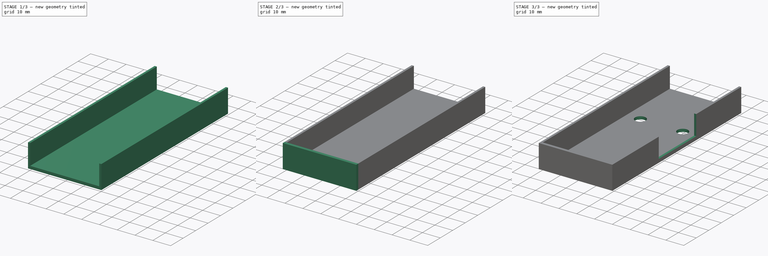
[diagram: build sequence overview — one tinted view per stage of 3, left to right]
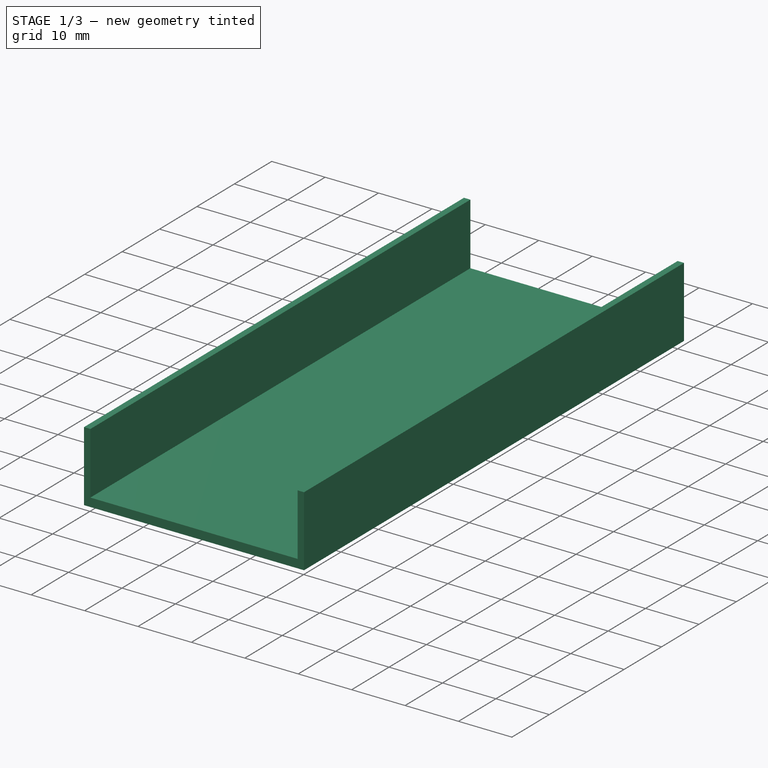
[diagram: stage 1 of 3 — iso view after this stage's code; geometry added in this stage tinted green]
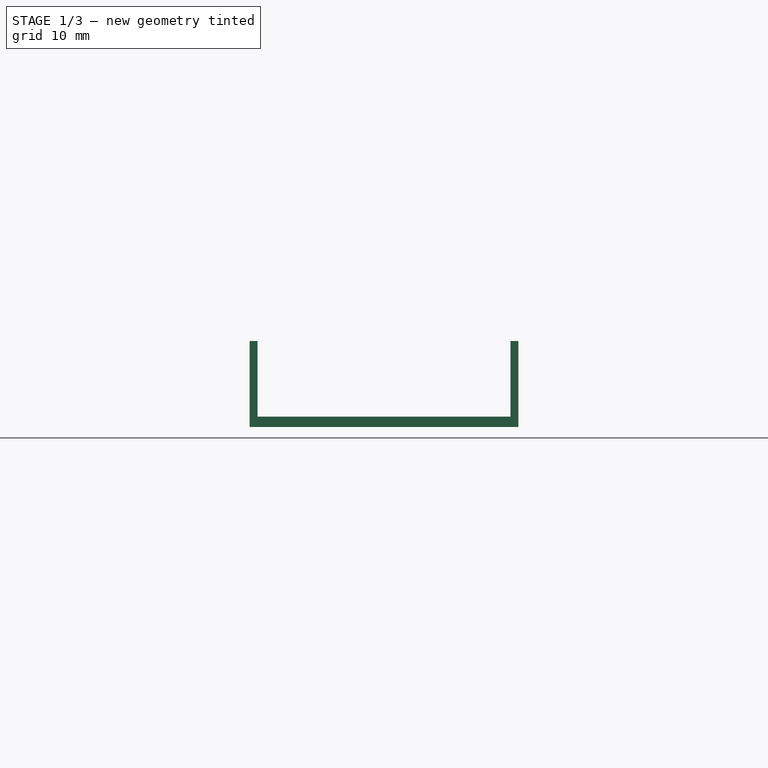
[diagram: stage 1 of 3 — front view after this stage's code; geometry added in this stage tinted green]
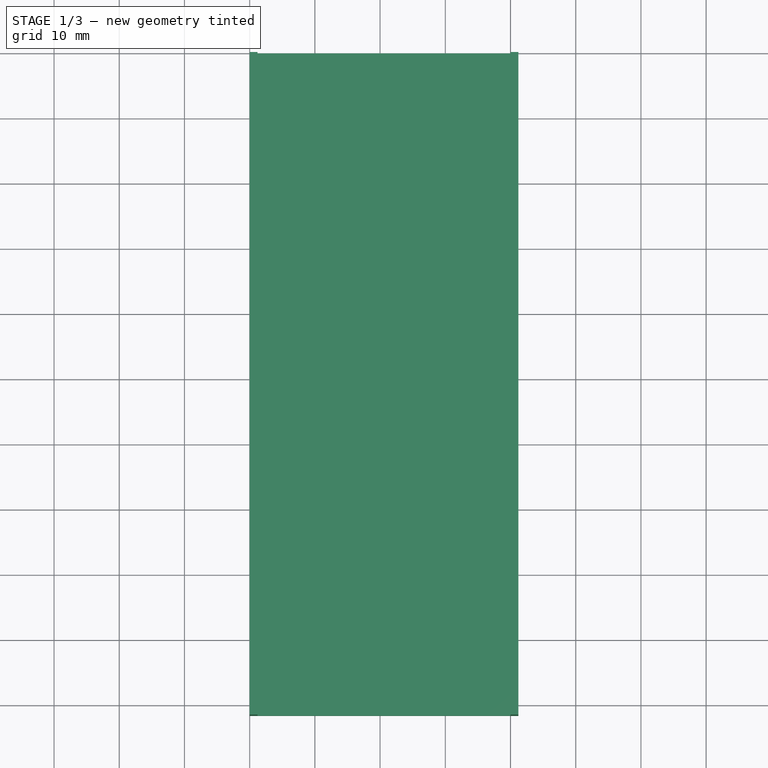
[diagram: stage 1 of 3 — top view after this stage's code; geometry added in this stage tinted green]
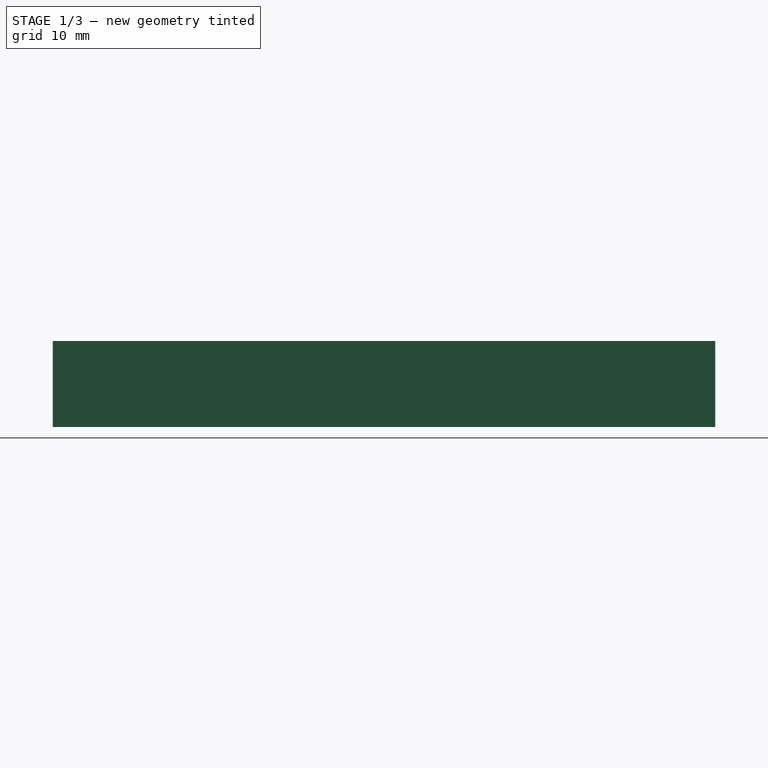
[diagram: stage 1 of 3 — right view after this stage's code; geometry added in this stage tinted green]
FCSTD DOCUMENT  (FreeCAD 0.16R6712 (Git))
Label: LCM cabshell10
License: All rights reserved
LicenseURL: http://en.wikipedia.org/wiki/All_rights_reserved
objects: Sketcher::SketchObject×5, PartDesign::Pad×3, PartDesign::Pocket×2
note: 15 computed .brp shape members not serialized (recipe doc carries the construction recipe); baked Part::Feature solids carry a one-line shape summary decoded from their .brp

FEATURE [Sketcher::SketchObject] Sketch
  sketch-geometry (4):
    g0: LineSegment StartX=0 StartY=0 StartZ=0 EndX=41.2 EndY=0 EndZ=0
    g1: LineSegment StartX=41.2 StartY=0 StartZ=0 EndX=41.2 EndY=-101.6 EndZ=0
    g2: LineSegment StartX=41.2 StartY=-101.6 StartZ=0 EndX=0 EndY=-101.6 EndZ=0
    g3: LineSegment StartX=0 StartY=-101.6 StartZ=0 EndX=0 EndY=0 EndZ=0
  constraints (11):
    c: Coincident(g0,g1)
    c: Coincident(g1,g2)
    c: Coincident(g2,g3)
    c: Coincident(g3,g0)
    c: Horizontal(g0)
    c: Horizontal(g2)
    c: Vertical(g1)
    c: Vertical(g3)
    c: Coincident(g0,g-1)
    c: DistanceY(g3,g3) = 101.6
    c: DistanceX(g2,g2) = 41.2
FEATURE [PartDesign::Pad] Pad
  Length = 1.6
  Length2 = 100
  Sketch = -> Sketch
  Type = 0
FEATURE [Sketcher::SketchObject] Sketch001
  ExternalGeometry = -> [Pad]
  Placement = pos=(0,0,1.6) rot=(0,0,1;0rad)
  Support = -> Pad [Face6]
  sketch-geometry (8):
    g0: LineSegment StartX=0 StartY=0 StartZ=0 EndX=1.2 EndY=0 EndZ=0
    g1: LineSegment StartX=1.2 StartY=0 StartZ=0 EndX=1.2 EndY=-101.6 EndZ=0
    g2: LineSegment StartX=1.2 StartY=-101.6 StartZ=0 EndX=0 EndY=-101.6 EndZ=0
    g3: LineSegment StartX=0 StartY=-101.6 StartZ=0 EndX=0 EndY=0 EndZ=0
    g4: LineSegment StartX=40 StartY=0 StartZ=0 EndX=41.2 EndY=0 EndZ=0
    g5: LineSegment StartX=41.2 StartY=0 StartZ=0 EndX=41.2 EndY=-101.6 EndZ=0
    g6: LineSegment StartX=41.2 StartY=-101.6 StartZ=0 EndX=40 EndY=-101.6 EndZ=0
    g7: LineSegment StartX=40 StartY=-101.6 StartZ=0 EndX=40 EndY=0 EndZ=0
  constraints (22):
    c: Coincident(g0,g1)
    c: Coincident(g1,g2)
    c: Coincident(g2,g3)
    c: Coincident(g3,g0)
    c: Horizontal(g0)
    c: Horizontal(g2)
    c: Vertical(g1)
    c: Vertical(g3)
    c: Coincident(g4,g5)
    c: Coincident(g5,g6)
    c: Coincident(g6,g7)
    c: Coincident(g7,g4)
    c: Horizontal(g4)
    c: Horizontal(g6)
    c: Vertical(g5)
    c: Vertical(g7)
    c: Coincident(g0,g-1)
    c: DistanceY(g1,g1) = 101.6
    c: DistanceX(g2,g2) = 1.2
    c: Coincident(g4,g-3)
    c: DistanceY(g7,g7) = 101.6
    c: DistanceX(g6,g6) = 1.2
FEATURE [PartDesign::Pad] Pad001
  Length = 11.6
  Length2 = 100
  Sketch = -> Sketch001
  Type = 0
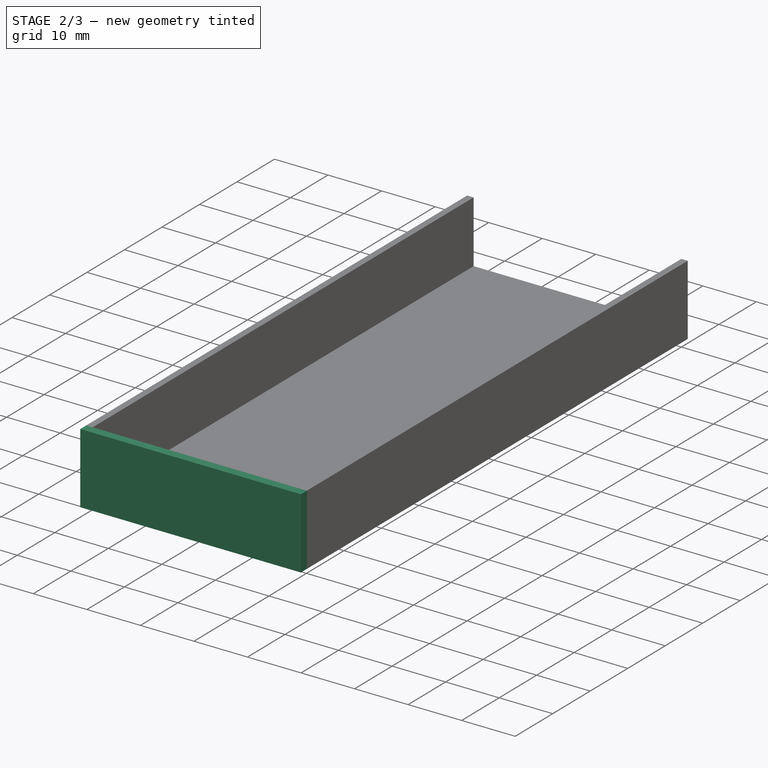
[diagram: stage 2 of 3 — iso view after this stage's code; geometry added in this stage tinted green]
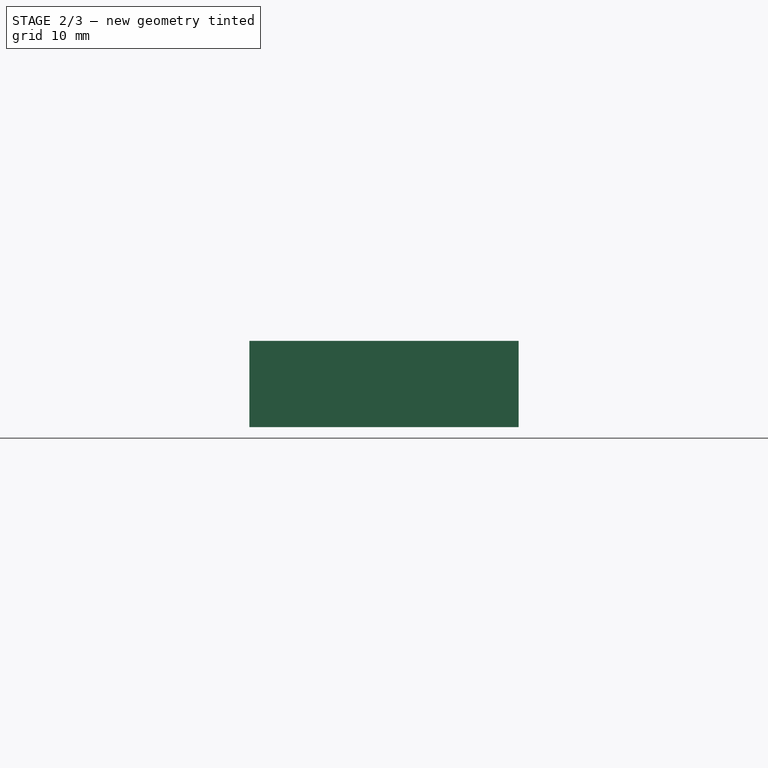
[diagram: stage 2 of 3 — front view after this stage's code; geometry added in this stage tinted green]
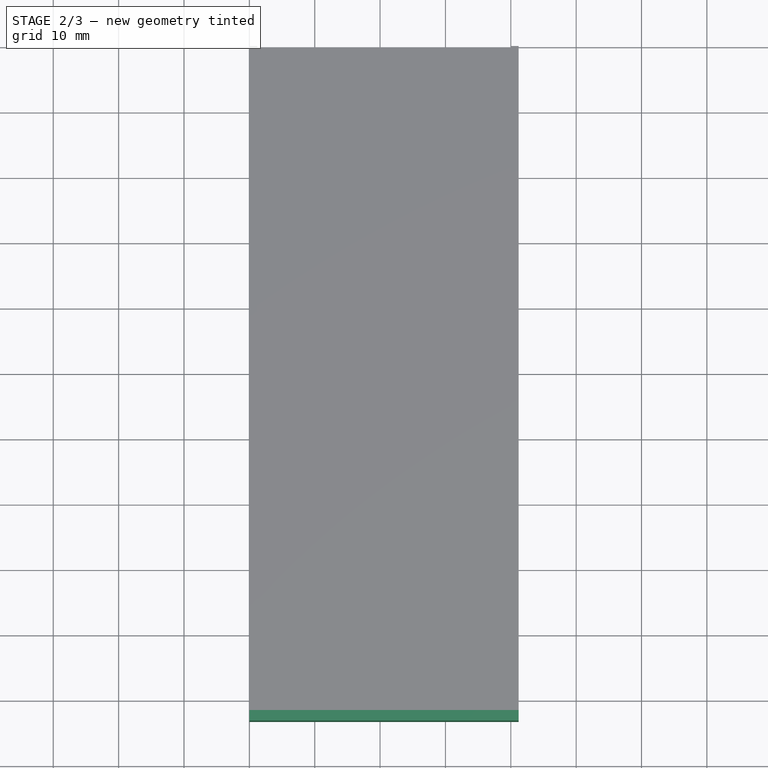
[diagram: stage 2 of 3 — top view after this stage's code; geometry added in this stage tinted green]
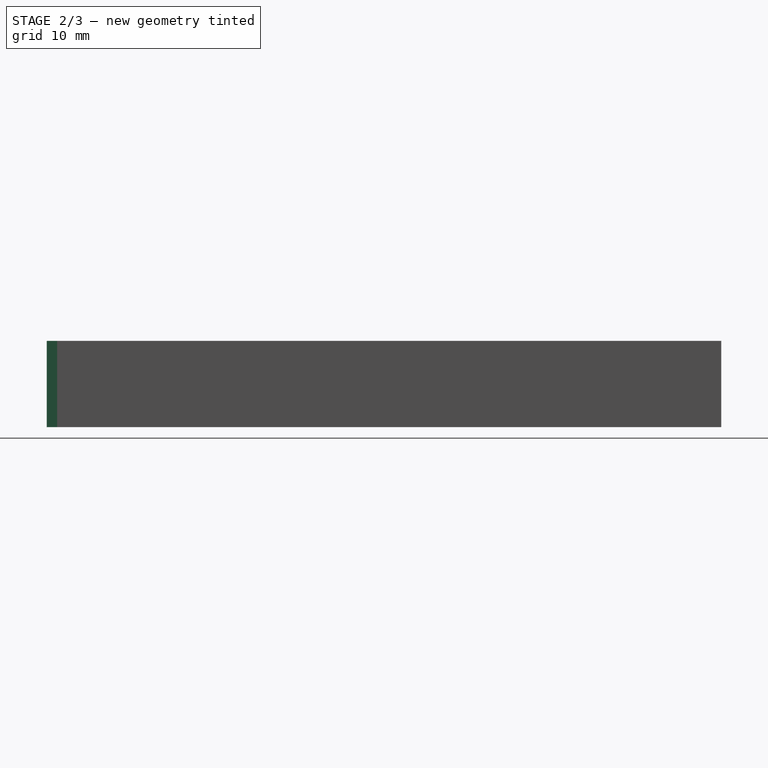
[diagram: stage 2 of 3 — right view after this stage's code; geometry added in this stage tinted green]
FEATURE [Sketcher::SketchObject] Sketch002
  Placement = pos=(0,-101.6,0) rot=(1,0,0;1.5708rad)
  Support = -> Pad001 [Face4]
  sketch-geometry (4):
    g0: LineSegment StartX=0 StartY=13.2 StartZ=0 EndX=41.2 EndY=13.2 EndZ=0
    g1: LineSegment StartX=41.2 StartY=13.2 StartZ=0 EndX=41.2 EndY=0 EndZ=0
    g2: LineSegment StartX=41.2 StartY=0 StartZ=0 EndX=0 EndY=0 EndZ=0
    g3: LineSegment StartX=0 StartY=0 StartZ=0 EndX=0 EndY=13.2 EndZ=0
  constraints (11):
    c: Coincident(g0,g1)
    c: Coincident(g1,g2)
    c: Coincident(g2,g3)
    c: Coincident(g3,g0)
    c: Horizontal(g0)
    c: Horizontal(g2)
    c: Vertical(g1)
    c: Vertical(g3)
    c: DistanceX(g2,g2) = 41.2
    c: DistanceY(g3,g3) = 13.2
    c: Coincident(g-1,g2)
FEATURE [PartDesign::Pad] Pad002
  Length = 1.6
  Length2 = 100
  Sketch = -> Sketch002
  Type = 0
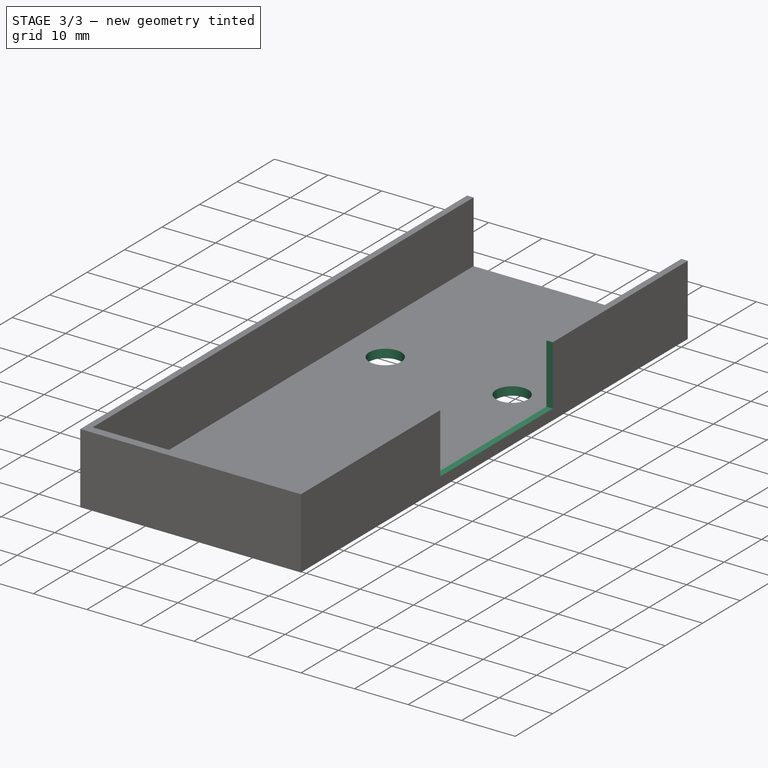
[diagram: stage 3 of 3 — iso view after this stage's code; geometry added in this stage tinted green]
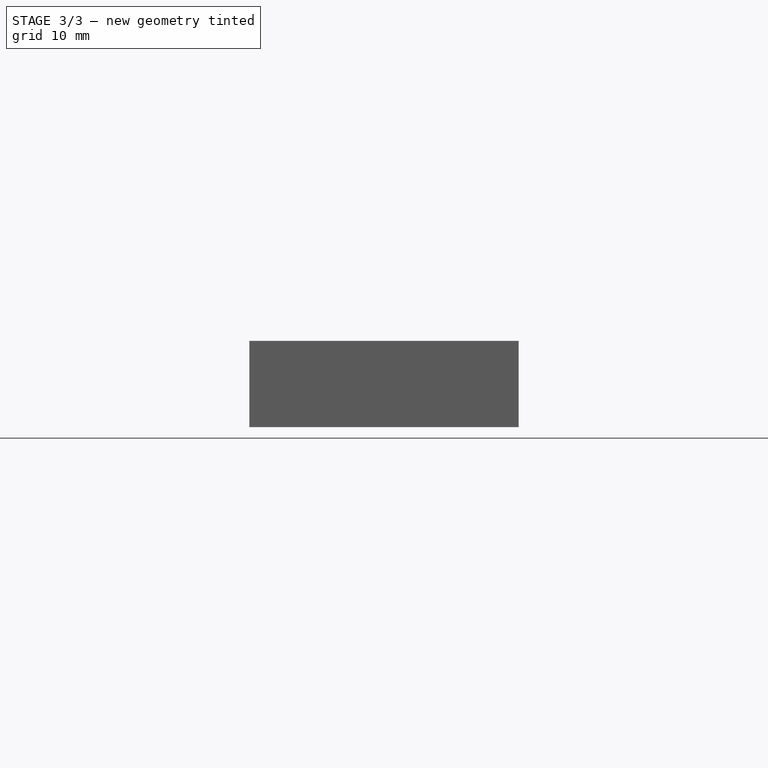
[diagram: stage 3 of 3 — front view after this stage's code; geometry added in this stage tinted green]
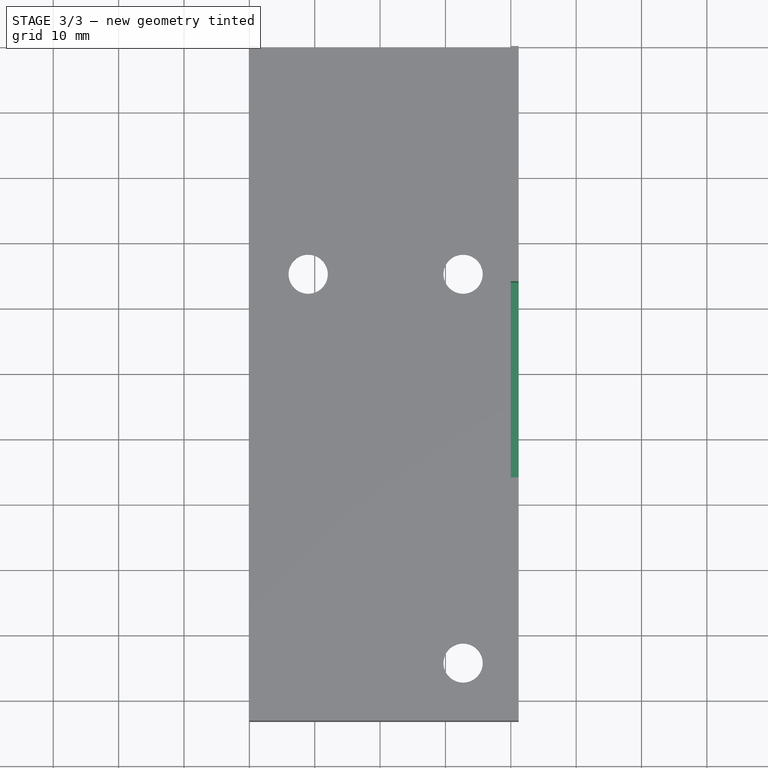
[diagram: stage 3 of 3 — top view after this stage's code; geometry added in this stage tinted green]
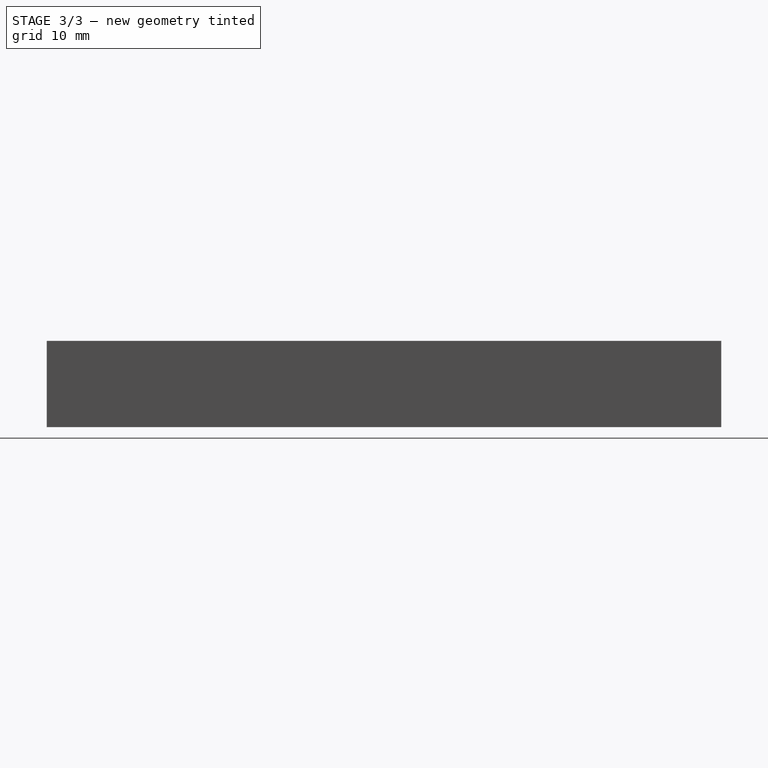
[diagram: stage 3 of 3 — right view after this stage's code; geometry added in this stage tinted green]
FEATURE [Sketcher::SketchObject] Sketch003
  Placement = pos=(41.2,0,0) rot=(0.57735,0.57735,0.57735;2.0944rad)
  Support = -> Pad002 [Face13]
  sketch-geometry (4):
    g0: LineSegment StartX=-66 StartY=13.2 StartZ=0 EndX=-36 EndY=13.2 EndZ=0
    g1: LineSegment StartX=-36 StartY=13.2 StartZ=0 EndX=-36 EndY=2 EndZ=0
    g2: LineSegment StartX=-36 StartY=2 StartZ=0 EndX=-66 EndY=2 EndZ=0
    g3: LineSegment StartX=-66 StartY=2 StartZ=0 EndX=-66 EndY=13.2 EndZ=0
  constraints (12):
    c: Coincident(g0,g1)
    c: Coincident(g1,g2)
    c: Coincident(g2,g3)
    c: Coincident(g3,g0)
    c: Horizontal(g0)
    c: Horizontal(g2)
    c: Vertical(g1)
    c: Vertical(g3)
    c: DistanceX(g1,g-1) = 36
    c: DistanceX(g2,g-1) = 66
    c: DistanceY(g-1,g1) = 2
    c: DistanceY(g1,g1) = 11.2
FEATURE [PartDesign::Pocket] Pocket
  Length = 1.2
  Sketch = -> Sketch003
  Type = 0
FEATURE [Sketcher::SketchObject] Sketch004
  ExternalGeometry = -> [Pocket]
  Placement = pos=(0,0,0) rot=(1,0,0;3.14159rad)
  Support = -> Pocket [Face3]
  sketch-geometry (3):
    g0: Circle CenterX=32.7 CenterY=94.2 CenterZ=0 NormalX=0 NormalY=0 NormalZ=1 Radius=3
    g1: Circle CenterX=9 CenterY=34.7 CenterZ=0 NormalX=0 NormalY=0 NormalZ=1 Radius=3
    g2: Circle CenterX=32.7 CenterY=34.7 CenterZ=0 NormalX=0 NormalY=0 NormalZ=1 Radius=3
  constraints (9):
    c: DistanceX(g0,g-3) = 8.5
    c: DistanceY(g0,g-3) = 9
    c: DistanceY(g2,g1) = 0
    c: DistanceY(g2,g-3) = 68.5
    c: DistanceX(g2,g-3) = 8.5
    c: DistanceX(g-3,g1) = 9
    c: Radius(g1) = 3
    c: Equal(g1,g2)
    c: Equal(g1,g0)
FEATURE [PartDesign::Pocket] Pocket001
  Length = 1.6
  Sketch = -> Sketch004
  Type = 0
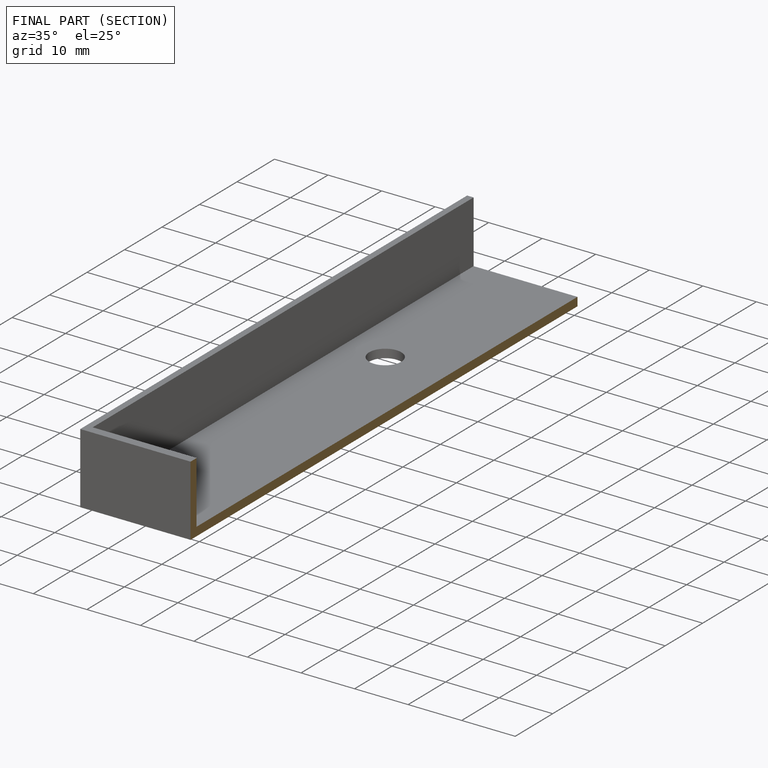
[diagram: finished part — half-section view (interior)]
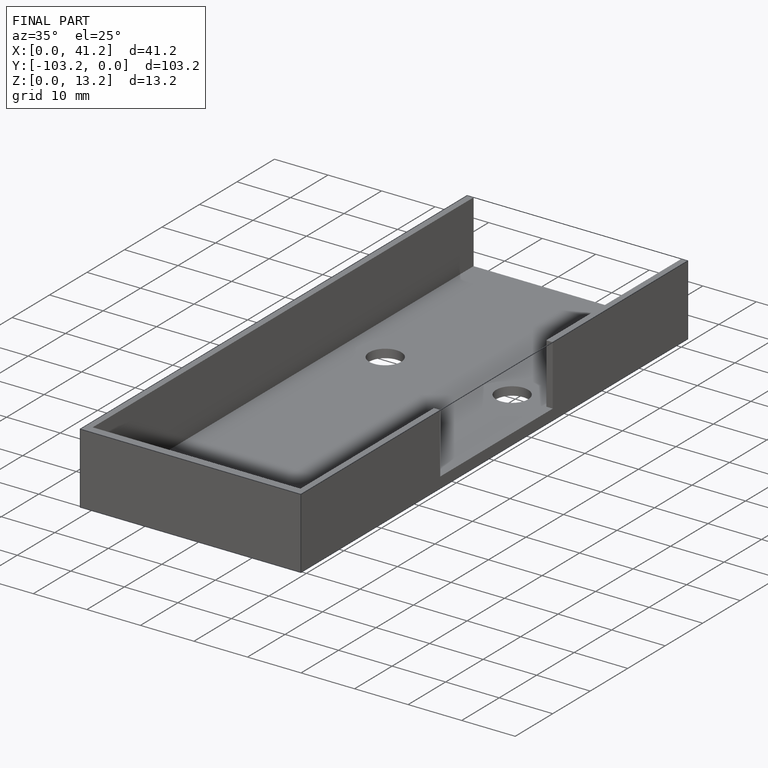
[diagram: finished part — iso view with bounding-box wireframe]
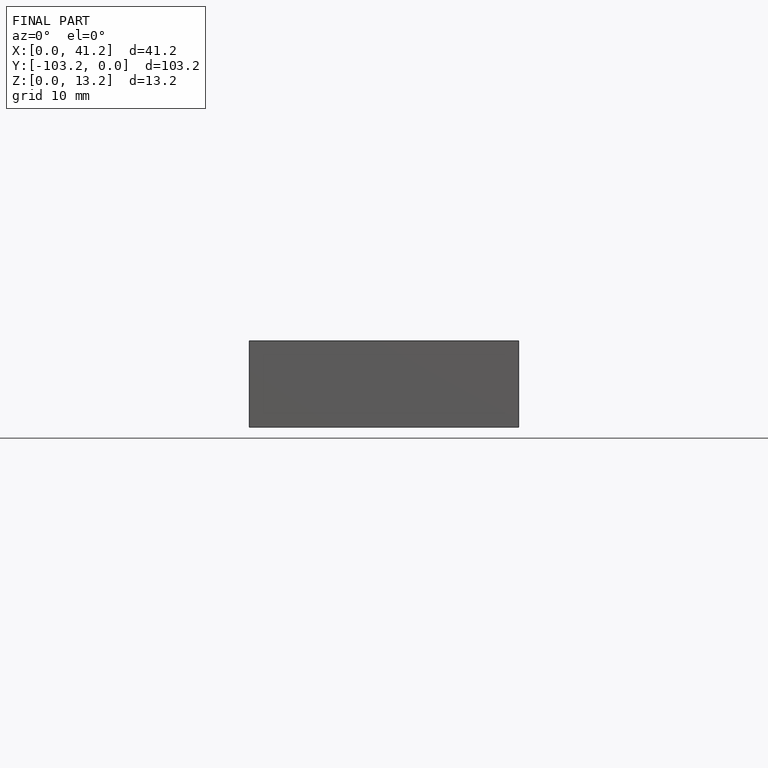
[diagram: finished part — front view with bounding-box wireframe]
